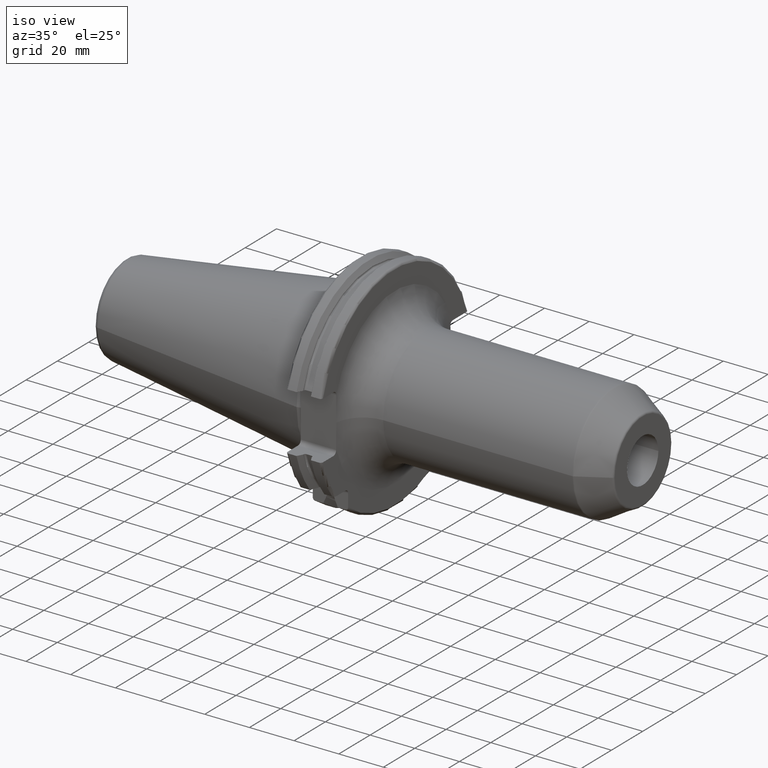
[diagram: clean part render]
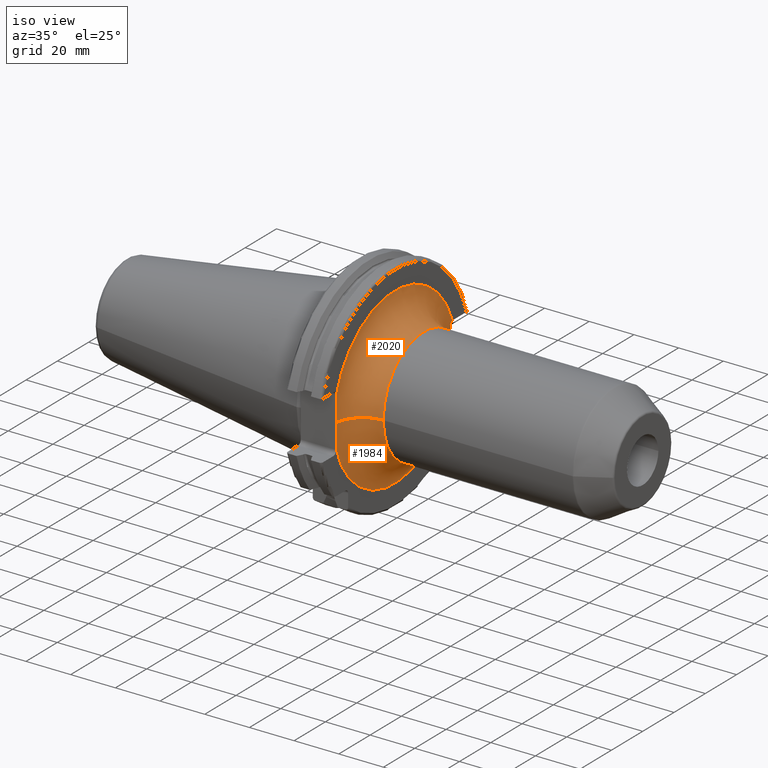
[diagram: same view with one multi-face feature highlighted, each face labeled with its STEP entity id]
A machine part, iso view. The highlighted faces form ONE feature: a constant-radius fillet chain: 2 tangent blend faces with common blend radius 13 mm. The faces share edges in the B-rep.
Their STEP definitions:
[1] entity #1984 (Torus):
#136=CARTESIAN_POINT('',(1.905E1,0.E0,0.E0));
#137=DIRECTION('',(1.E0,0.E0,0.E0));
#138=DIRECTION('',(0.E0,-9.615379332327E-1,-2.746721736081E-1));
#139=AXIS2_PLACEMENT_3D('',#136,#137,#138);
#178=CARTESIAN_POINT('',(1.913682839637E1,-3.75E1,-4.649477750510E-3));
#179=CARTESIAN_POINT('',(1.913681123348E1,-3.75E1,-1.196328813150E0));
#180=CARTESIAN_POINT('',(1.912280190963E1,-3.749999798938E1,-3.578502053241E0));
#181=CARTESIAN_POINT('',(1.907398070699E1,-3.750000703717E1,-7.157694526056E0));
#182=CARTESIAN_POINT('',(1.905E1,-3.749998492035E1,-9.528854444669E0));
#183=CARTESIAN_POINT('',(1.905E1,-3.749998492035E1,-1.071222143625E1));
#185=CARTESIAN_POINT('',(3.205E1,-3.899999970024E1,-4.835456823364E-3));
#186=DIRECTION('',(0.E0,1.239860723939E-4,-9.999999923137E-1));
#187=DIRECTION('',(-9.933208925867E-1,1.153845923258E-1,1.430608252721E-5));
#188=AXIS2_PLACEMENT_3D('',#185,#186,#187);
#190=CARTESIAN_POINT('',(1.920181073032E1,3.53E1,-1.115E1));
#191=CARTESIAN_POINT('',(1.926053894606E1,3.53E1,-9.885341628941E0));
#192=CARTESIAN_POINT('',(1.939295661150E1,3.53E1,-7.374269555E0));
#193=CARTESIAN_POINT('',(1.954895954748E1,3.53E1,-3.669100849101E0));
#194=CARTESIAN_POINT('',(1.958770159609E1,3.53E1,-1.215957641702E0));
#195=CARTESIAN_POINT('',(1.958765664047E1,3.53E1,4.380026118217E-3));
#197=CARTESIAN_POINT('',(1.905E1,3.681052655189E1,-1.288348627121E1));
#198=CARTESIAN_POINT('',(1.905E1,3.669171047245E1,-1.286707247529E1));
#199=CARTESIAN_POINT('',(1.905324048045E1,3.645718644829E1,-1.280971485844E1));
#200=CARTESIAN_POINT('',(1.906820115343E1,3.613059509604E1,-1.265362418940E1));
#201=CARTESIAN_POINT('',(1.909221197968E1,3.584033897526E1,-1.243227026266E1));
#202=CARTESIAN_POINT('',(1.912268839635E1,3.559978493286E1,-1.215214440460E1));
#203=CARTESIAN_POINT('',(1.915436972964E1,3.542636726361E1,-1.183421564926E1));
#204=CARTESIAN_POINT('',(1.918225078067E1,3.532345997909E1,-1.149954120723E1));
#205=CARTESIAN_POINT('',(1.919641307587E1,3.53E1,-1.126623354799E1));
#206=CARTESIAN_POINT('',(1.920181073032E1,3.53E1,-1.115E1));
#227=CARTESIAN_POINT('',(1.958765664047E1,3.53E1,4.380026118217E-3));
#236=CARTESIAN_POINT('',(3.205E1,3.899999969978E1,4.839122303003E-3));
#237=DIRECTION('',(0.E0,-1.240800590514E-4,9.999999923021E-1));
#238=DIRECTION('',(-9.586417968870E-1,-2.846153615216E-1,-3.531509113637E-5));
#239=AXIS2_PLACEMENT_3D('',#236,#237,#238);
#246=CARTESIAN_POINT('',(1.913682839637E1,-3.75E1,-4.649477750510E-3));
#1208=CARTESIAN_POINT('',(3.205E1,0.E0,0.E0));
#1209=DIRECTION('',(1.E0,0.E0,0.E0));
#1210=DIRECTION('',(0.E0,-1.E0,0.E0));
#1211=AXIS2_PLACEMENT_3D('',#1208,#1209,#1210);
#1677=CARTESIAN_POINT('',(1.905E1,-3.749997939608E1,-1.071221477072E1));
#1678=CARTESIAN_POINT('',(1.905E1,3.681051853384E1,-1.288354474785E1));
#1679=VERTEX_POINT('',#1677);
#1680=VERTEX_POINT('',#1678);
#1681=CARTESIAN_POINT('',(3.205E1,-2.6E1,0.E0));
#1682=CARTESIAN_POINT('',(3.205E1,2.6E1,0.E0));
#1683=VERTEX_POINT('',#1681);
#1684=VERTEX_POINT('',#1682);
#1705=VERTEX_POINT('',#227);
#1707=VERTEX_POINT('',#190);
#1708=VERTEX_POINT('',#246);
#1966=CARTESIAN_POINT('',(3.205E1,0.E0,0.E0));
#1967=DIRECTION('',(1.E0,0.E0,0.E0));
#1968=DIRECTION('',(0.E0,-1.485959642860E-3,9.999988959614E-1));
#1969=AXIS2_PLACEMENT_3D('',#1966,#1967,#1968);
#1970=TOROIDAL_SURFACE('',#1969,3.9E1,1.3E1);
#1971=ORIENTED_EDGE('',*,*,#1920,.F.);
#1973=ORIENTED_EDGE('',*,*,#1972,.F.);
#1975=ORIENTED_EDGE('',*,*,#1974,.T.);
#1977=ORIENTED_EDGE('',*,*,#1976,.T.);
#1979=ORIENTED_EDGE('',*,*,#1978,.F.);
#1980=ORIENTED_EDGE('',*,*,#1882,.F.);
#1981=ORIENTED_EDGE('',*,*,#1905,.F.);
#1982=EDGE_LOOP('',(#1971,#1973,#1975,#1977,#1979,#1980,#1981));
#1983=FACE_OUTER_BOUND('',#1982,.F.);
#1984=ADVANCED_FACE('',(#1983),#1970,.F.);
#140=CIRCLE('',#139,3.9E1);
#184=B_SPLINE_CURVE_WITH_KNOTS('',3,(#178,#179,#180,#181,#182,#183),
.UNSPECIFIED.,.F.,.F.,(4,1,1,4),(0.E0,3.333333333333E-1,6.666666666667E-1,1.E0),
.UNSPECIFIED.);
#189=CIRCLE('',#188,1.3E1);
#196=B_SPLINE_CURVE_WITH_KNOTS('',3,(#190,#191,#192,#193,#194,#195),
.UNSPECIFIED.,.F.,.F.,(4,1,1,4),(0.E0,3.333333333333E-1,6.666666666667E-1,1.E0),
.UNSPECIFIED.);
#207=B_SPLINE_CURVE_WITH_KNOTS('',3,(#197,#198,#199,#200,#201,#202,#203,#204,
#205,#206),.UNSPECIFIED.,.F.,.F.,(4,1,1,1,1,1,1,4),(0.E0,1.428571428571E-1,
2.857142857143E-1,4.285714285714E-1,5.714285714286E-1,7.142857142857E-1,
8.571428571429E-1,1.E0),.UNSPECIFIED.);
#240=CIRCLE('',#239,1.3E1);
#1212=CIRCLE('',#1211,2.6E1);
#1882=EDGE_CURVE('',#1707,#1705,#196,.T.);
#1905=EDGE_CURVE('',#1680,#1707,#207,.T.);
#1920=EDGE_CURVE('',#1679,#1680,#140,.T.);
#1972=EDGE_CURVE('',#1708,#1679,#184,.T.);
#1974=EDGE_CURVE('',#1708,#1683,#189,.T.);
#1976=EDGE_CURVE('',#1683,#1684,#1212,.T.);
#1978=EDGE_CURVE('',#1705,#1684,#240,.T.);
[2] entity #2020 (Torus):
#161=CARTESIAN_POINT('',(1.905E1,0.E0,0.E0));
#162=DIRECTION('',(1.E0,0.E0,0.E0));
#163=DIRECTION('',(0.E0,9.438595321595E-1,3.303470652991E-1));
#164=AXIS2_PLACEMENT_3D('',#161,#162,#163);
#185=CARTESIAN_POINT('',(3.205E1,-3.899999970024E1,-4.835456823364E-3));
#186=DIRECTION('',(0.E0,1.239860723939E-4,-9.999999923137E-1));
#187=DIRECTION('',(-9.933208925867E-1,1.153845923258E-1,1.430608252721E-5));
#188=AXIS2_PLACEMENT_3D('',#185,#186,#187);
#216=CARTESIAN_POINT('',(1.920181073032E1,3.53E1,1.115E1));
#217=CARTESIAN_POINT('',(1.919641525953E1,3.53E1,1.126618652488E1));
#218=CARTESIAN_POINT('',(1.918225863293E1,3.532344077352E1,1.149942686698E1));
#219=CARTESIAN_POINT('',(1.915438270564E1,3.542631130494E1,1.183407738922E1));
#220=CARTESIAN_POINT('',(1.912269533620E1,3.559971886684E1,1.215208053027E1));
#221=CARTESIAN_POINT('',(1.909221345829E1,3.584037826057E1,1.243225803626E1));
#222=CARTESIAN_POINT('',(1.906824039997E1,3.612999621949E1,1.265325750871E1));
#223=CARTESIAN_POINT('',(1.905323858426E1,3.645706528248E1,1.280967752800E1));
#224=CARTESIAN_POINT('',(1.905E1,3.669164900003E1,1.286713845749E1));
#225=CARTESIAN_POINT('',(1.905E1,3.681051549392E1,1.288355921788E1));
#227=CARTESIAN_POINT('',(1.958765664047E1,3.53E1,4.380026118217E-3));
#228=CARTESIAN_POINT('',(1.958763391062E1,3.53E1,6.213906256830E-1));
#229=CARTESIAN_POINT('',(1.957775343383E1,3.53E1,1.887967987531E0));
#230=CARTESIAN_POINT('',(1.953227498906E1,3.53E1,3.843442192170E0));
#231=CARTESIAN_POINT('',(1.945329955790E1,3.53E1,5.980706198213E0));
#232=CARTESIAN_POINT('',(1.933713076397E1,3.53E1,8.417804303245E0));
#233=CARTESIAN_POINT('',(1.924548983805E1,3.53E1,1.020941039524E1));
#234=CARTESIAN_POINT('',(1.920181073032E1,3.53E1,1.115E1));
#236=CARTESIAN_POINT('',(3.205E1,3.899999969978E1,4.839122303003E-3));
#237=DIRECTION('',(0.E0,-1.240800590514E-4,9.999999923021E-1));
#238=DIRECTION('',(-9.586417968870E-1,-2.846153615216E-1,-3.531509113637E-5));
#239=AXIS2_PLACEMENT_3D('',#236,#237,#238);
#241=CARTESIAN_POINT('',(1.905E1,-3.749999734735E1,1.071219019464E1));
#242=CARTESIAN_POINT('',(1.905E1,-3.749999734735E1,9.526491966399E0));
#243=CARTESIAN_POINT('',(1.907406570909E1,-3.750000123790E1,7.151595859062E0));
#244=CARTESIAN_POINT('',(1.912289525180E1,-3.749999964631E1,3.570548230735E0));
#245=CARTESIAN_POINT('',(1.913684556344E1,-3.75E1,1.187319168093E0));
#246=CARTESIAN_POINT('',(1.913682839637E1,-3.75E1,-4.649477750510E-3));
#1044=CARTESIAN_POINT('',(3.205E1,0.E0,0.E0));
#1045=DIRECTION('',(1.E0,0.E0,0.E0));
#1046=DIRECTION('',(0.E0,1.E0,0.E0));
#1047=AXIS2_PLACEMENT_3D('',#1044,#1045,#1046);
#1681=CARTESIAN_POINT('',(3.205E1,-2.6E1,0.E0));
#1682=CARTESIAN_POINT('',(3.205E1,2.6E1,0.E0));
#1683=VERTEX_POINT('',#1681);
#1684=VERTEX_POINT('',#1682);
#1685=CARTESIAN_POINT('',(1.905E1,3.681052175422E1,1.288353554666E1));
#1686=CARTESIAN_POINT('',(1.905E1,-3.749996968125E1,1.071224877908E1));
#1687=VERTEX_POINT('',#1685);
#1688=VERTEX_POINT('',#1686);
#1705=VERTEX_POINT('',#227);
#1706=VERTEX_POINT('',#234);
#1708=VERTEX_POINT('',#246);
#2004=CARTESIAN_POINT('',(3.205E1,0.E0,0.E0));
#2005=DIRECTION('',(1.E0,0.E0,0.E0));
#2006=DIRECTION('',(0.E0,1.485959642860E-3,-9.999988959614E-1));
#2007=AXIS2_PLACEMENT_3D('',#2004,#2005,#2006);
#2008=TOROIDAL_SURFACE('',#2007,3.9E1,1.3E1);
#2009=ORIENTED_EDGE('',*,*,#1949,.F.);
#2011=ORIENTED_EDGE('',*,*,#2010,.F.);
#2012=ORIENTED_EDGE('',*,*,#1884,.F.);
#2013=ORIENTED_EDGE('',*,*,#1978,.T.);
#2015=ORIENTED_EDGE('',*,*,#2014,.T.);
#2016=ORIENTED_EDGE('',*,*,#1974,.F.);
#2017=ORIENTED_EDGE('',*,*,#1991,.F.);
#2018=EDGE_LOOP('',(#2009,#2011,#2012,#2013,#2015,#2016,#2017));
#2019=FACE_OUTER_BOUND('',#2018,.F.);
#2020=ADVANCED_FACE('',(#2019),#2008,.F.);
#165=CIRCLE('',#164,3.9E1);
#189=CIRCLE('',#188,1.3E1);
#226=B_SPLINE_CURVE_WITH_KNOTS('',3,(#216,#217,#218,#219,#220,#221,#222,#223,
#224,#225),.UNSPECIFIED.,.F.,.F.,(4,1,1,1,1,1,1,4),(0.E0,1.428571428571E-1,
2.857142857143E-1,4.285714285714E-1,5.714285714286E-1,7.142857142857E-1,
8.571428571429E-1,1.E0),.UNSPECIFIED.);
#235=B_SPLINE_CURVE_WITH_KNOTS('',3,(#227,#228,#229,#230,#231,#232,#233,#234),
.UNSPECIFIED.,.F.,.F.,(4,1,1,1,1,4),(0.E0,2.E-1,4.E-1,6.E-1,8.E-1,1.E0),
.UNSPECIFIED.);
#240=CIRCLE('',#239,1.3E1);
#247=B_SPLINE_CURVE_WITH_KNOTS('',3,(#241,#242,#243,#244,#245,#246),
.UNSPECIFIED.,.F.,.F.,(4,1,1,4),(0.E0,3.333333333333E-1,6.666666666667E-1,1.E0),
.UNSPECIFIED.);
#1048=CIRCLE('',#1047,2.6E1);
#1884=EDGE_CURVE('',#1705,#1706,#235,.T.);
#1949=EDGE_CURVE('',#1687,#1688,#165,.T.);
#1974=EDGE_CURVE('',#1708,#1683,#189,.T.);
#1978=EDGE_CURVE('',#1705,#1684,#240,.T.);
#1991=EDGE_CURVE('',#1688,#1708,#247,.T.);
#2010=EDGE_CURVE('',#1706,#1687,#226,.T.);
#2014=EDGE_CURVE('',#1684,#1683,#1048,.T.);